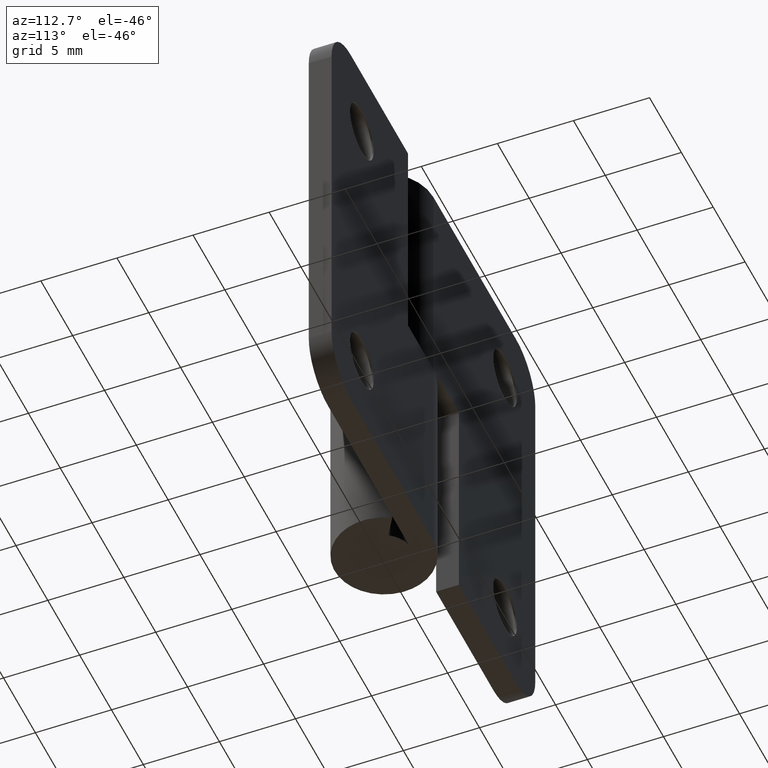
[diagram: clean part render]
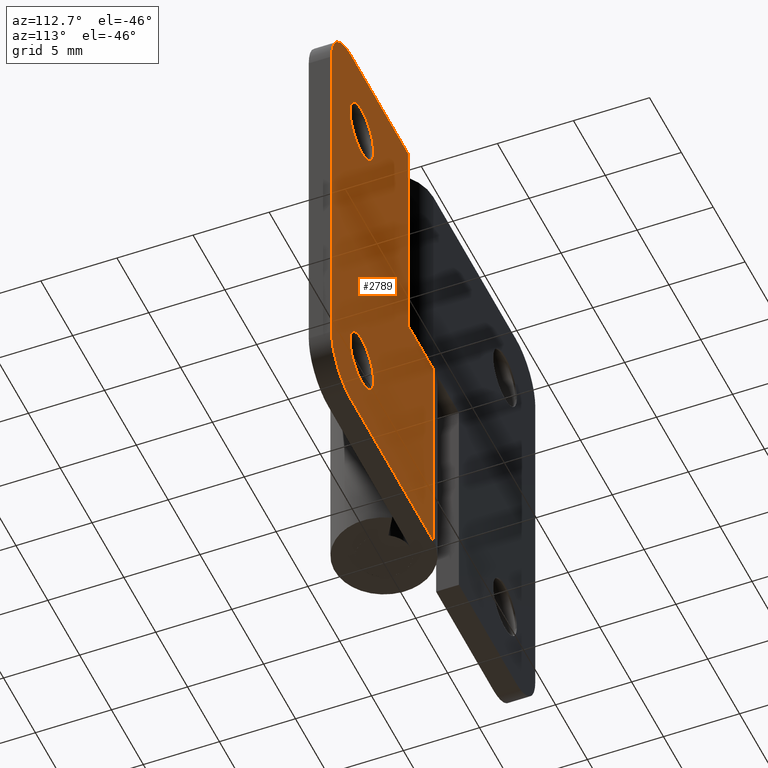
[diagram: same view with one face highlighted and labeled with its STEP entity id]
A machine part, auxiliary view. The second image highlights one B-rep face of the part: STEP entity #2789.
In plain terms, the highlighted face is a freeform B-spline surface patch.
Its self-contained STEP definition (entity closure, byte-faithful):
#1861=CARTESIAN_POINT('',(13.087067629684340,3.250000000000000,25.218371334879251));
#1862=VERTEX_POINT('',#1861);
#1868=CARTESIAN_POINT('',(11.250000000000000,3.250000000000000,23.150007999999801));
#1869=VERTEX_POINT('',#1868);
#1870=CARTESIAN_POINT('',(13.087067629684343,3.250000000000000,25.218371334879247));
#1871=CARTESIAN_POINT('',(13.100000000000003,3.250000000000000,25.109572621417385));
#1872=CARTESIAN_POINT('',(13.100000000000000,3.250000000000000,25.000007999999799));
#1873=CARTESIAN_POINT('',(13.100000000000001,3.250000000000000,23.150007999999794));
#1874=CARTESIAN_POINT('',(11.250000000000000,3.250000000000000,23.150007999999801));
#1882=(BOUNDED_CURVE()B_SPLINE_CURVE(2,(#1870,#1871,#1872,#1873,#1874),.UNSPECIFIED.,.F.,.U.)B_SPLINE_CURVE_WITH_KNOTS((3,2,3),(0.229562473504437,0.250000000000000,0.500000000000000),.UNSPECIFIED.)CURVE()GEOMETRIC_REPRESENTATION_ITEM()RATIONAL_B_SPLINE_CURVE((0.956026754165919,0.976055948320517,1.0,0.707106781186548,1.0))REPRESENTATION_ITEM(''));
#1883=EDGE_CURVE('',#1862,#1869,#1882,.T.);
#1885=CARTESIAN_POINT('',(9.403450616970716,3.250000000000000,24.887068201487960));
#1886=VERTEX_POINT('',#1885);
#1887=CARTESIAN_POINT('',(11.250000000000000,3.250000000000000,23.150007999999801));
#1888=CARTESIAN_POINT('',(9.509693776240475,3.250000000000000,23.150007999999801));
#1889=CARTESIAN_POINT('',(9.403450616970716,3.250000000000000,24.887068201487963));
#1897=(BOUNDED_CURVE()B_SPLINE_CURVE(2,(#1887,#1888,#1889),.UNSPECIFIED.,.F.,.U.)B_SPLINE_CURVE_WITH_KNOTS((3,3),(0.500000000000000,0.739332962240384),.UNSPECIFIED.)CURVE()GEOMETRIC_REPRESENTATION_ITEM()RATIONAL_B_SPLINE_CURVE((1.0,0.719603993285022,0.976072041669806))REPRESENTATION_ITEM(''));
#1898=EDGE_CURVE('',#1869,#1886,#1897,.T.);
#1932=CARTESIAN_POINT('',(11.250000000000000,3.250000000000000,26.850007999999800));
#1933=VERTEX_POINT('',#1932);
#1934=CARTESIAN_POINT('',(9.403450616970716,3.250000000000000,24.887068201487967));
#1935=CARTESIAN_POINT('',(9.400000000000000,3.250000000000000,24.943485387888913));
#1936=CARTESIAN_POINT('',(9.399999999999999,3.250000000000000,25.000007999999799));
#1937=CARTESIAN_POINT('',(9.400000000000000,3.250000000000000,26.850007999999800));
#1938=CARTESIAN_POINT('',(11.250000000000000,3.250000000000000,26.850007999999800));
#1946=(BOUNDED_CURVE()B_SPLINE_CURVE(2,(#1934,#1935,#1936,#1937,#1938),.UNSPECIFIED.,.F.,.U.)B_SPLINE_CURVE_WITH_KNOTS((3,2,3),(0.739332962240384,0.750000000000000,1.0),.UNSPECIFIED.)CURVE()GEOMETRIC_REPRESENTATION_ITEM()RATIONAL_B_SPLINE_CURVE((0.976072041669807,0.987502787901526,1.0,0.707106781186548,1.0))REPRESENTATION_ITEM(''));
#1947=EDGE_CURVE('',#1886,#1933,#1946,.T.);
#1949=CARTESIAN_POINT('',(11.250000000000000,3.250000000000000,26.850007999999800));
#1950=CARTESIAN_POINT('',(12.893122872900303,3.250000000000000,26.850007999999800));
#1951=CARTESIAN_POINT('',(13.087067629684341,3.250000000000000,25.218371334879254));
#1959=(BOUNDED_CURVE()B_SPLINE_CURVE(2,(#1949,#1950,#1951),.UNSPECIFIED.,.F.,.U.)B_SPLINE_CURVE_WITH_KNOTS((3,3),(0.0,0.229562473504437),.UNSPECIFIED.)CURVE()GEOMETRIC_REPRESENTATION_ITEM()RATIONAL_B_SPLINE_CURVE((1.0,0.731050832866030,0.956026754165919))REPRESENTATION_ITEM(''));
#1960=EDGE_CURVE('',#1933,#1862,#1959,.T.);
#2205=CARTESIAN_POINT('',(13.087067629684340,3.250000000000000,5.218363334879453));
#2206=VERTEX_POINT('',#2205);
#2212=CARTESIAN_POINT('',(11.250000000000000,3.250000000000000,3.150000000000000));
#2213=VERTEX_POINT('',#2212);
#2214=CARTESIAN_POINT('',(13.087067629684341,3.250000000000000,5.218363334879453));
#2215=CARTESIAN_POINT('',(13.100000000000003,3.250000000000000,5.109564621417589));
#2216=CARTESIAN_POINT('',(13.100000000000000,3.250000000000000,5.0));
#2217=CARTESIAN_POINT('',(13.100000000000001,3.250000000000000,3.149999999999999));
#2218=CARTESIAN_POINT('',(11.250000000000000,3.250000000000000,3.150000000000000));
#2226=(BOUNDED_CURVE()B_SPLINE_CURVE(2,(#2214,#2215,#2216,#2217,#2218),.UNSPECIFIED.,.F.,.U.)B_SPLINE_CURVE_WITH_KNOTS((3,2,3),(0.229562473504437,0.250000000000000,0.500000000000000),.UNSPECIFIED.)CURVE()GEOMETRIC_REPRESENTATION_ITEM()RATIONAL_B_SPLINE_CURVE((0.956026754165919,0.976055948320517,1.0,0.707106781186548,1.0))REPRESENTATION_ITEM(''));
#2227=EDGE_CURVE('',#2206,#2213,#2226,.T.);
#2229=CARTESIAN_POINT('',(9.403450616970716,3.250000000000000,4.887060201488163));
#2230=VERTEX_POINT('',#2229);
#2231=CARTESIAN_POINT('',(11.250000000000000,3.250000000000000,3.150000000000000));
#2232=CARTESIAN_POINT('',(9.509693776240475,3.250000000000000,3.149999999999999));
#2233=CARTESIAN_POINT('',(9.403450616970716,3.250000000000000,4.887060201488163));
#2241=(BOUNDED_CURVE()B_SPLINE_CURVE(2,(#2231,#2232,#2233),.UNSPECIFIED.,.F.,.U.)B_SPLINE_CURVE_WITH_KNOTS((3,3),(0.500000000000000,0.739332962240384),.UNSPECIFIED.)CURVE()GEOMETRIC_REPRESENTATION_ITEM()RATIONAL_B_SPLINE_CURVE((1.0,0.719603993285022,0.976072041669806))REPRESENTATION_ITEM(''));
#2242=EDGE_CURVE('',#2213,#2230,#2241,.T.);
#2276=CARTESIAN_POINT('',(11.250000000000000,3.250000000000000,6.850000000000001));
#2277=VERTEX_POINT('',#2276);
#2278=CARTESIAN_POINT('',(9.403450616970716,3.250000000000000,4.887060201488164));
#2279=CARTESIAN_POINT('',(9.399999999999997,3.250000000000000,4.943477387889112));
#2280=CARTESIAN_POINT('',(9.399999999999999,3.250000000000000,5.0));
#2281=CARTESIAN_POINT('',(9.400000000000000,3.250000000000000,6.850000000000001));
#2282=CARTESIAN_POINT('',(11.250000000000000,3.250000000000000,6.850000000000001));
#2290=(BOUNDED_CURVE()B_SPLINE_CURVE(2,(#2278,#2279,#2280,#2281,#2282),.UNSPECIFIED.,.F.,.U.)B_SPLINE_CURVE_WITH_KNOTS((3,2,3),(0.739332962240385,0.750000000000000,1.0),.UNSPECIFIED.)CURVE()GEOMETRIC_REPRESENTATION_ITEM()RATIONAL_B_SPLINE_CURVE((0.976072041669808,0.987502787901526,1.0,0.707106781186548,1.0))REPRESENTATION_ITEM(''));
#2291=EDGE_CURVE('',#2230,#2277,#2290,.T.);
#2293=CARTESIAN_POINT('',(11.250000000000000,3.250000000000000,6.850000000000001));
#2294=CARTESIAN_POINT('',(12.893122872900303,3.250000000000000,6.850000000000000));
#2295=CARTESIAN_POINT('',(13.087067629684340,3.250000000000000,5.218363334879453));
#2303=(BOUNDED_CURVE()B_SPLINE_CURVE(2,(#2293,#2294,#2295),.UNSPECIFIED.,.F.,.U.)B_SPLINE_CURVE_WITH_KNOTS((3,3),(0.0,0.229562473504437),.UNSPECIFIED.)CURVE()GEOMETRIC_REPRESENTATION_ITEM()RATIONAL_B_SPLINE_CURVE((1.0,0.731050832866030,0.956026754165919))REPRESENTATION_ITEM(''));
#2304=EDGE_CURVE('',#2277,#2206,#2303,.T.);
#2315=CARTESIAN_POINT('',(3.999999999999885,3.250000000000000,30.000008000000001));
#2316=VERTEX_POINT('',#2315);
#2324=CARTESIAN_POINT('',(3.999999999999885,3.250000000000000,15.0));
#2325=VERTEX_POINT('',#2324);
#2326=CARTESIAN_POINT('',(3.999999999999885,3.250000000000000,15.0));
#2327=CARTESIAN_POINT('',(3.999999999999885,3.250000000000000,30.000008000000001));
#2328=QUASI_UNIFORM_CURVE('',1,(#2326,#2327),.UNSPECIFIED.,.F.,.U.);
#2329=EDGE_CURVE('',#2325,#2316,#2328,.T.);
#2353=CARTESIAN_POINT('',(0.0,3.250000000000000,15.0));
#2354=VERTEX_POINT('',#2353);
#2408=CARTESIAN_POINT('',(0.0,3.250000000000000,15.0));
#2409=CARTESIAN_POINT('',(3.999999999999885,3.250000000000000,15.0));
#2410=QUASI_UNIFORM_CURVE('',1,(#2408,#2409),.UNSPECIFIED.,.F.,.U.);
#2411=EDGE_CURVE('',#2354,#2325,#2410,.T.);
#2447=CARTESIAN_POINT('',(16.0,3.250000000000000,27.000008000000001));
#2448=VERTEX_POINT('',#2447);
#2454=CARTESIAN_POINT('',(13.0,3.250000000000000,30.000008000000001));
#2455=VERTEX_POINT('',#2454);
#2456=CARTESIAN_POINT('',(16.0,3.250000000000000,27.000008000000001));
#2457=CARTESIAN_POINT('',(15.999999999999998,3.250000000000000,30.000008000000005));
#2458=CARTESIAN_POINT('',(13.0,3.250000000000000,30.000008000000001));
#2466=(BOUNDED_CURVE()B_SPLINE_CURVE(2,(#2456,#2457,#2458),.UNSPECIFIED.,.F.,.U.)CURVE()GEOMETRIC_REPRESENTATION_ITEM()QUASI_UNIFORM_CURVE()RATIONAL_B_SPLINE_CURVE((1.0,0.707106781186548,1.0))REPRESENTATION_ITEM(''));
#2467=EDGE_CURVE('',#2448,#2455,#2466,.T.);
#2508=CARTESIAN_POINT('',(13.0,3.250000000000000,0.0));
#2509=VERTEX_POINT('',#2508);
#2515=CARTESIAN_POINT('',(16.0,3.250000000000000,3.0));
#2516=VERTEX_POINT('',#2515);
#2517=CARTESIAN_POINT('',(13.0,3.250000000000000,0.0));
#2518=CARTESIAN_POINT('',(15.999999999999998,3.250000000000000,0.0));
#2519=CARTESIAN_POINT('',(16.0,3.250000000000000,3.0));
#2527=(BOUNDED_CURVE()B_SPLINE_CURVE(2,(#2517,#2518,#2519),.UNSPECIFIED.,.F.,.U.)CURVE()GEOMETRIC_REPRESENTATION_ITEM()QUASI_UNIFORM_CURVE()RATIONAL_B_SPLINE_CURVE((1.0,0.707106781186548,1.0))REPRESENTATION_ITEM(''));
#2528=EDGE_CURVE('',#2509,#2516,#2527,.T.);
#2543=CARTESIAN_POINT('',(3.999999999999885,3.250000000000000,30.000008000000001));
#2544=CARTESIAN_POINT('',(13.0,3.250000000000000,30.000008000000001));
#2545=QUASI_UNIFORM_CURVE('',1,(#2543,#2544),.UNSPECIFIED.,.F.,.U.);
#2546=EDGE_CURVE('',#2316,#2455,#2545,.T.);
#2599=CARTESIAN_POINT('',(0.0,3.250000000000000,0.0));
#2600=VERTEX_POINT('',#2599);
#2620=CARTESIAN_POINT('',(0.0,3.250000000000000,0.0));
#2621=CARTESIAN_POINT('',(13.0,3.250000000000000,0.0));
#2622=QUASI_UNIFORM_CURVE('',1,(#2620,#2621),.UNSPECIFIED.,.F.,.U.);
#2623=EDGE_CURVE('',#2600,#2509,#2622,.T.);
#2705=CARTESIAN_POINT('',(0.0,3.250000000000000,0.0));
#2706=CARTESIAN_POINT('',(0.0,3.250000000000000,15.0));
#2707=QUASI_UNIFORM_CURVE('',1,(#2705,#2706),.UNSPECIFIED.,.F.,.U.);
#2708=EDGE_CURVE('',#2600,#2354,#2707,.T.);
#2719=CARTESIAN_POINT('',(16.0,3.250000000000000,3.0));
#2720=CARTESIAN_POINT('',(16.0,3.250000000000000,27.000008000000001));
#2721=QUASI_UNIFORM_CURVE('',1,(#2719,#2720),.UNSPECIFIED.,.F.,.U.);
#2722=EDGE_CURVE('',#2516,#2448,#2721,.T.);
#2762=CARTESIAN_POINT('',(-0.799199968988895,3.250000000000000,31.498508059835551));
#2763=CARTESIAN_POINT('',(-0.799199968988895,3.250000000000000,-1.498501132719441));
#2764=CARTESIAN_POINT('',(16.799200398142339,3.250000000000000,31.498508059835551));
#2765=CARTESIAN_POINT('',(16.799200398142339,3.250000000000000,-1.498501132719441));
#2766=B_SPLINE_SURFACE_WITH_KNOTS('',1,1,((#2762,#2764),(#2763,#2765)),.UNSPECIFIED.,.F.,.F.,.U.,(2,2),(2,2),(0.0,32.997009192554998),(0.0,17.598400367131230),.UNSPECIFIED.);
#2767=ORIENTED_EDGE('',*,*,#2411,.T.);
#2768=ORIENTED_EDGE('',*,*,#2329,.T.);
#2769=ORIENTED_EDGE('',*,*,#2546,.T.);
#2770=ORIENTED_EDGE('',*,*,#2467,.F.);
#2771=ORIENTED_EDGE('',*,*,#2722,.F.);
#2772=ORIENTED_EDGE('',*,*,#2528,.F.);
#2773=ORIENTED_EDGE('',*,*,#2623,.F.);
#2774=ORIENTED_EDGE('',*,*,#2708,.T.);
#2775=EDGE_LOOP('',(#2767,#2768,#2769,#2770,#2771,#2772,#2773,#2774));
#2776=FACE_OUTER_BOUND('',#2775,.T.);
#2777=ORIENTED_EDGE('',*,*,#2242,.F.);
#2778=ORIENTED_EDGE('',*,*,#2227,.F.);
#2779=ORIENTED_EDGE('',*,*,#2304,.F.);
#2780=ORIENTED_EDGE('',*,*,#2291,.F.);
#2781=EDGE_LOOP('',(#2777,#2778,#2779,#2780));
#2782=FACE_BOUND('',#2781,.T.);
#2783=ORIENTED_EDGE('',*,*,#1898,.F.);
#2784=ORIENTED_EDGE('',*,*,#1883,.F.);
#2785=ORIENTED_EDGE('',*,*,#1960,.F.);
#2786=ORIENTED_EDGE('',*,*,#1947,.F.);
#2787=EDGE_LOOP('',(#2783,#2784,#2785,#2786));
#2788=FACE_BOUND('',#2787,.T.);
#2789=ADVANCED_FACE('',(#2776,#2782,#2788),#2766,.F.);